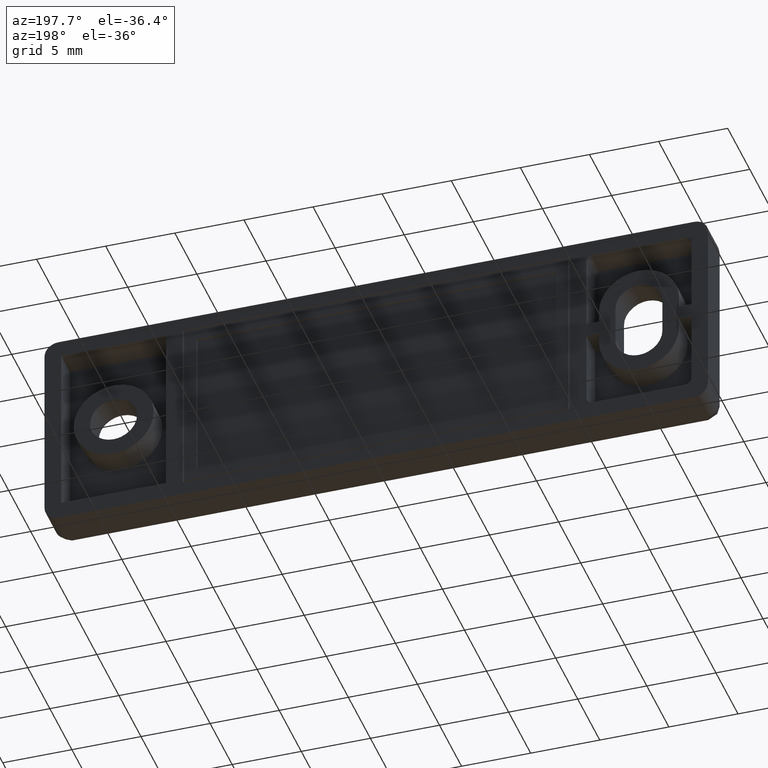
[diagram: clean part render]
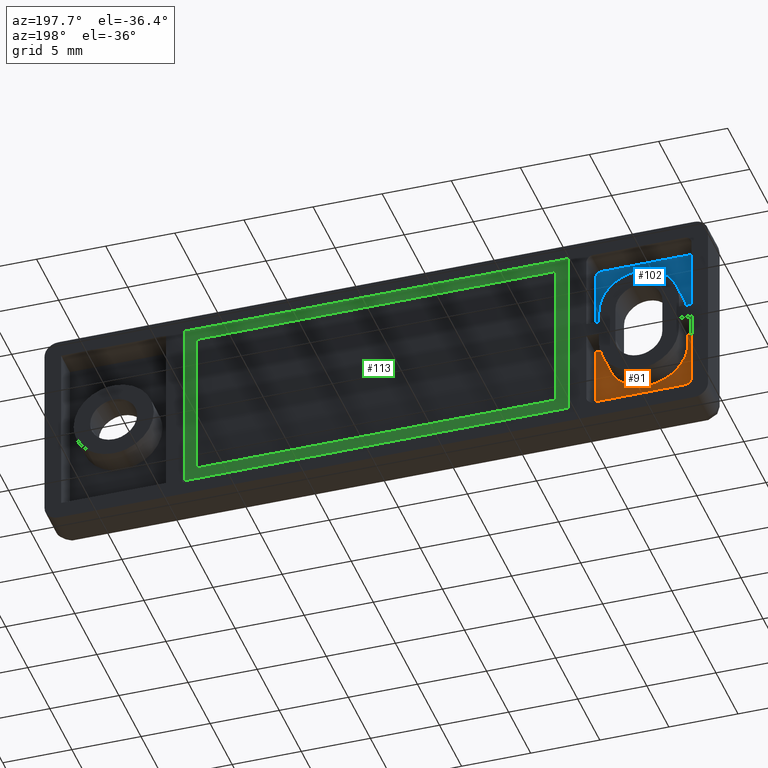
[diagram: same view with three faces highlighted in distinct colors, each labeled with its STEP entity id]
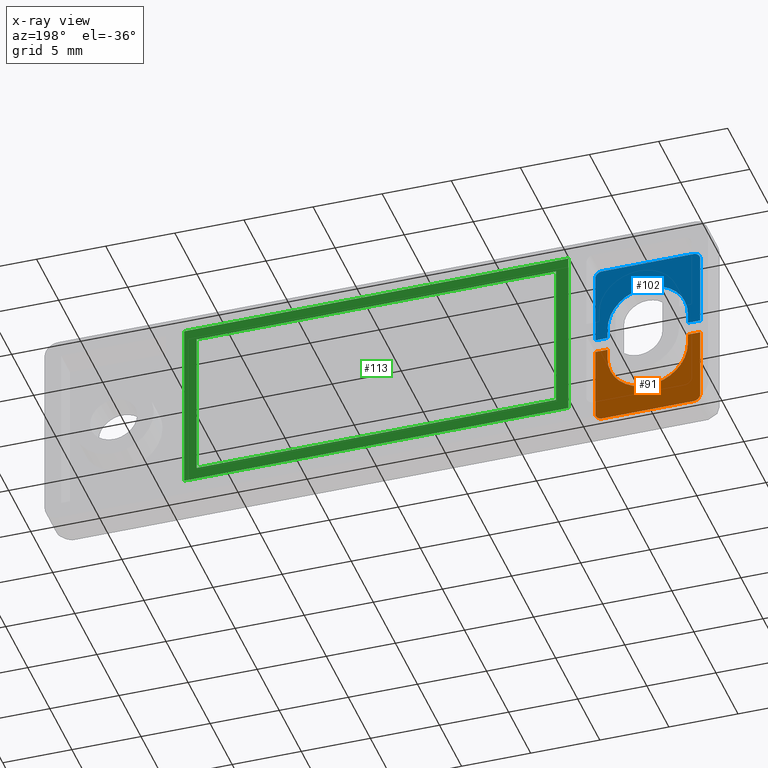
[diagram: x-ray of the same camera — body ghosted, the three highlighted faces saturated]
A machine part, auxiliary view with three faces highlighted in distinct colors.
The next image is the same camera in x-ray (body ghosted, the three faces saturated) — at least one of them is partly hidden behind the body in this view.
Their STEP definitions:

[orange] entity #91 — the highlighted planar face has unit normal (0, 1, 0).
#91=ADVANCED_FACE('',(#313),#312,.T.);
#312=PLANE('',#1016);
#313=FACE_OUTER_BOUND('',#1017,.T.);
#1013=CARTESIAN_POINT('',(-2.35601754630E+01,-2.00000000000E+00,8.00071536270E-02));
#1014=DIRECTION('',(-0.00000000000E+00,1.00000000000E+00,0.00000000000E+00));
#1015=DIRECTION('',(1.00000000000E+00,0.00000000000E+00,0.00000000000E+00));
#1016=AXIS2_PLACEMENT_3D('',#1013,#1014,#1015);
#1017=EDGE_LOOP('',(#1491,#1492,#1493,#1494,#1495,#1496,#1497,#1498,#1499,#1500,#1501));
#1491=ORIENTED_EDGE('',*,*,#1878,.T.);
#1492=ORIENTED_EDGE('',*,*,#1882,.T.);
#1493=ORIENTED_EDGE('',*,*,#1887,.T.);
#1494=ORIENTED_EDGE('',*,*,#1886,.T.);
#1495=ORIENTED_EDGE('',*,*,#1890,.T.);
#1496=ORIENTED_EDGE('',*,*,#1893,.T.);
#1497=ORIENTED_EDGE('',*,*,#1896,.T.);
#1498=ORIENTED_EDGE('',*,*,#1899,.F.);
#1499=ORIENTED_EDGE('',*,*,#1902,.T.);
#1500=ORIENTED_EDGE('',*,*,#1905,.F.);
#1501=ORIENTED_EDGE('',*,*,#1907,.T.);
#1878=EDGE_CURVE('',#2364,#2357,#2365,.T.);
#1882=EDGE_CURVE('',#2357,#2384,#2391,.T.);
#1886=EDGE_CURVE('',#2418,#2411,#2419,.T.);
#1887=EDGE_CURVE('',#2384,#2418,#2425,.T.);
#1890=EDGE_CURVE('',#2411,#2438,#2445,.T.);
#1893=EDGE_CURVE('',#2438,#2458,#2465,.T.);
#1896=EDGE_CURVE('',#2458,#2478,#2485,.T.);
#1899=EDGE_CURVE('',#2498,#2478,#2505,.T.);
#1902=EDGE_CURVE('',#2498,#2518,#2525,.T.);
#1905=EDGE_CURVE('',#2538,#2518,#2545,.T.);
#1907=EDGE_CURVE('',#2538,#2364,#2557,.T.);
#2357=VERTEX_POINT('',#3797);
#2364=VERTEX_POINT('',#3801);
#2365=LINE('',#3802,#3803);
#2384=VERTEX_POINT('',#3812);
#2391=LINE('',#3816,#3817);
#2411=VERTEX_POINT('',#3843);
#2418=VERTEX_POINT('',#3847);
#2419=(BOUNDED_CURVE() B_SPLINE_CURVE(3,(#3848,#3849,#3850,#3851,#3852,#3853,#3854,#3855,#3856,#3857,#3858),.UNSPECIFIED.,.F.,.F.) B_SPLINE_CURVE_WITH_KNOTS((4,1,1,1,1,1,1,1,4),(5.94023610000E-08,8.54120386783E-01,1.56590033256E+00,1.95738562439E+00,2.38442678061E+00,2.95384669290E+00,3.38091405099E+00,3.77239358662E+00,4.55533752793E+00),.UNSPECIFIED.) CURVE() GEOMETRIC_REPRESENTATION_ITEM() RATIONAL_B_SPLINE_CURVE((1.00000000000E+00,1.00000000000E+00,1.00000000000E+00,1.00000000000E+00,1.00000000000E+00,1.00000000000E+00,1.00000000000E+00,1.00000000000E+00,1.00000000000E+00,1.00000000000E+00,1.00000000000E+00)) REPRESENTATION_ITEM('') );
#2425=(BOUNDED_CURVE() B_SPLINE_CURVE(3,(#3859,#3860,#3861,#3862,#3863,#3864,#3865,#3866,#3867,#3868,#3869),.UNSPECIFIED.,.F.,.F.) B_SPLINE_CURVE_WITH_KNOTS((4,1,1,1,1,1,1,1,4),(5.91551710000E-08,9.60888281034E-01,1.45913288657E+00,1.81502232611E+00,2.38442720276E+00,2.74031822230E+00,3.27414715155E+00,3.63003658789E+00,4.55533833275E+00),.UNSPECIFIED.) CURVE() GEOMETRIC_REPRESENTATION_ITEM() RATIONAL_B_SPLINE_CURVE((1.00000000000E+00,1.00000000000E+00,1.00000000000E+00,1.00000000000E+00,1.00000000000E+00,1.00000000000E+00,1.00000000000E+00,1.00000000000E+00,1.00000000000E+00,1.00000000000E+00,1.00000000000E+00)) REPRESENTATION_ITEM('') );
#2438=VERTEX_POINT('',#3874);
#2445=LINE('',#3878,#3879);
#2458=VERTEX_POINT('',#3885);
#2465=LINE('',#3889,#3890);
#2478=VERTEX_POINT('',#3896);
#2485=LINE('',#3900,#3901);
#2498=VERTEX_POINT('',#3912);
#2505=(BOUNDED_CURVE() B_SPLINE_CURVE(3,(#3916,#3917,#3918,#3919,#3920,#3921,#3922,#3923),.UNSPECIFIED.,.F.,.F.) B_SPLINE_CURVE_WITH_KNOTS((4,1,1,1,1,4),(1.23599749000E-07,1.96355604590E-01,3.06813913871E-01,4.54068945242E-01,5.64516977189E-01,7.85417872190E-01),.UNSPECIFIED.) CURVE() GEOMETRIC_REPRESENTATION_ITEM() RATIONAL_B_SPLINE_CURVE((1.00000000000E+00,1.00000000000E+00,1.00000000000E+00,1.00000000000E+00,1.00000000000E+00,1.00000000000E+00,1.00000000000E+00,1.00000000000E+00)) REPRESENTATION_ITEM('') );
#2518=VERTEX_POINT('',#3928);
#2525=LINE('',#3932,#3933);
#2538=VERTEX_POINT('',#3944);
#2545=(BOUNDED_CURVE() B_SPLINE_CURVE(3,(#3948,#3949,#3950,#3951,#3952,#3953,#3954,#3955),.UNSPECIFIED.,.F.,.F.) B_SPLINE_CURVE_WITH_KNOTS((4,1,1,1,1,4),(1.23600712000E-07,2.45448224030E-01,3.80454108132E-01,5.03149611088E-01,6.38154660478E-01,7.85417872190E-01),.UNSPECIFIED.) CURVE() GEOMETRIC_REPRESENTATION_ITEM() RATIONAL_B_SPLINE_CURVE((1.00000000000E+00,1.00000000000E+00,1.00000000000E+00,1.00000000000E+00,1.00000000000E+00,1.00000000000E+00,1.00000000000E+00,1.00000000000E+00)) REPRESENTATION_ITEM('') );
#2557=LINE('',#3959,#3960);
#3797=CARTESIAN_POINT('',(-2.19000000000E+01,-2.00000000000E+00,-5.00000000000E-01));
#3801=CARTESIAN_POINT('',(-2.28000000000E+01,-2.00000000000E+00,-5.00000000000E-01));
#3802=CARTESIAN_POINT('',(-2.28000000000E+01,-2.00000000000E+00,-5.00000000000E-01));
#3803=VECTOR('',#3804,9.00000000000E-01);
#3804=DIRECTION('',(1.00000000000E+00,0.00000000000E+00,0.00000000000E+00));
#3812=CARTESIAN_POINT('',(-2.19000000000E+01,-2.00000000000E+00,-1.30000000000E+00));
#3816=CARTESIAN_POINT('',(-2.19000000000E+01,-2.00000000000E+00,-5.00000000000E-01));
#3817=VECTOR('',#3818,8.00000000000E-01);
#3818=DIRECTION('',(0.00000000000E+00,0.00000000000E+00,-1.00000000000E+00));
#3843=CARTESIAN_POINT('',(-1.61000000000E+01,-2.00000000000E+00,-1.30000000000E+00));
#3847=CARTESIAN_POINT('',(-1.89999992860E+01,-2.00000000000E+00,-4.20000000000E+00));
#3848=CARTESIAN_POINT('',(-1.89999992860E+01,-2.00000000000E+00,-4.20000000000E+00));
#3849=CARTESIAN_POINT('',(-1.87152859027E+01,-2.00000000000E+00,-4.20012022427E+00));
#3850=CARTESIAN_POINT('',(-1.81933793495E+01,-2.00000000000E+00,-4.12250706028E+00));
#3851=CARTESIAN_POINT('',(-1.75924046317E+01,-2.00000000000E+00,-3.85610465468E+00));
#3852=CARTESIAN_POINT('',(-1.71726338653E+01,-2.00000000000E+00,-3.56422816902E+00));
#3853=CARTESIAN_POINT('',(-1.68327368150E+01,-2.00000000000E+00,-3.24851551912E+00));
#3854=CARTESIAN_POINT('',(-1.65440293677E+01,-2.00000000000E+00,-2.86906778448E+00));
#3855=CARTESIAN_POINT('',(-1.63304041438E+01,-2.00000000000E+00,-2.45727037141E+00));
#3856=CARTESIAN_POINT('',(-1.61532121897E+01,-2.00000000000E+00,-1.95241189496E+00));
#3857=CARTESIAN_POINT('',(-1.60999119195E+01,-2.00000000000E+00,-1.56099112129E+00));
#3858=CARTESIAN_POINT('',(-1.61000000000E+01,-2.00000000000E+00,-1.30000000000E+00));
#3859=CARTESIAN_POINT('',(-2.19000000000E+01,-2.00000000000E+00,-1.30000000000E+00));
#3860=CARTESIAN_POINT('',(-2.19002203905E+01,-2.00000000000E+00,-1.62032704566E+00));
#3861=CARTESIAN_POINT('',(-2.18185608183E+01,-2.00000000000E+00,-2.10655638569E+00));
#3862=CARTESIAN_POINT('',(-2.15724215714E+01,-2.00000000000E+00,-2.66168416893E+00));
#3863=CARTESIAN_POINT('',(-2.13180934806E+01,-2.00000000000E+00,-3.06334234342E+00));
#3864=CARTESIAN_POINT('',(-2.10338413717E+01,-2.00000000000E+00,-3.38480601491E+00));
#3865=CARTESIAN_POINT('',(-2.06571539115E+01,-2.00000000000E+00,-3.69393994284E+00));
#3866=CARTESIAN_POINT('',(-2.02982098843E+01,-2.00000000000E+00,-3.90609561216E+00));
#3867=CARTESIAN_POINT('',(-1.97354016414E+01,-2.00000000000E+00,-4.13120527656E+00));
#3868=CARTESIAN_POINT('',(-1.93084622584E+01,-2.00000000000E+00,-4.20019142225E+00));
#3869=CARTESIAN_POINT('',(-1.89999992860E+01,-2.00000000000E+00,-4.20000000000E+00));
#3874=CARTESIAN_POINT('',(-1.61000000000E+01,-2.00000000000E+00,-5.00000000000E-01));
#3878=CARTESIAN_POINT('',(-1.61000000000E+01,-2.00000000000E+00,-1.30000000000E+00));
#3879=VECTOR('',#3880,8.00000000000E-01);
#3880=DIRECTION('',(0.00000000000E+00,0.00000000000E+00,1.00000000000E+00));
#3885=CARTESIAN_POINT('',(-1.52000000000E+01,-2.00000000000E+00,-5.00000000000E-01));
#3889=CARTESIAN_POINT('',(-1.61000000000E+01,-2.00000000000E+00,-5.00000000000E-01));
#3890=VECTOR('',#3891,9.00000000000E-01);
#3891=DIRECTION('',(1.00000000000E+00,0.00000000000E+00,0.00000000000E+00));
#3896=CARTESIAN_POINT('',(-1.52000000000E+01,-2.00000000000E+00,-5.80000000000E+00));
#3900=CARTESIAN_POINT('',(-1.52000000000E+01,-2.00000000000E+00,-5.00000000000E-01));
#3901=VECTOR('',#3902,5.30000000000E+00);
#3902=DIRECTION('',(0.00000000000E+00,0.00000000000E+00,-1.00000000000E+00));
#3912=CARTESIAN_POINT('',(-1.57000000000E+01,-2.00000000000E+00,-6.30000000000E+00));
#3916=CARTESIAN_POINT('',(-1.57000000000E+01,-2.00000000000E+00,-6.30000000000E+00));
#3917=CARTESIAN_POINT('',(-1.56345356158E+01,-2.00000000000E+00,-6.30007153627E+00));
#3918=CARTESIAN_POINT('',(-1.55323324227E+01,-2.00000000000E+00,-6.27961485808E+00));
#3919=CARTESIAN_POINT('',(-1.53989157553E+01,-2.00000000000E+00,-6.20618297631E+00));
#3920=CARTESIAN_POINT('',(-1.53090790605E+01,-2.00000000000E+00,-6.12064658594E+00));
#3921=CARTESIAN_POINT('',(-1.52248570185E+01,-2.00000000000E+00,-5.98399176637E+00));
#3922=CARTESIAN_POINT('',(-1.51998861435E+01,-2.00000000000E+00,-5.87365765608E+00));
#3923=CARTESIAN_POINT('',(-1.52000000000E+01,-2.00000000000E+00,-5.80000000000E+00));
#3928=CARTESIAN_POINT('',(-2.23000000000E+01,-2.00000000000E+00,-6.30000000000E+00));
#3932=CARTESIAN_POINT('',(-1.57000000000E+01,-2.00000000000E+00,-6.30000000000E+00));
#3933=VECTOR('',#3934,6.60000000000E+00);
#3934=DIRECTION('',(-1.00000000000E+00,0.00000000000E+00,0.00000000000E+00));
#3944=CARTESIAN_POINT('',(-2.28000000000E+01,-2.00000000000E+00,-5.80000000000E+00));
#3948=CARTESIAN_POINT('',(-2.28000000000E+01,-2.00000000000E+00,-5.80000000000E+00));
#3949=CARTESIAN_POINT('',(-2.28001491613E+01,-2.00000000000E+00,-5.88184692325E+00));
#3950=CARTESIAN_POINT('',(-2.27681805156E+01,-2.00000000000E+00,-6.00849718998E+00));
#3951=CARTESIAN_POINT('',(-2.26689487196E+01,-2.00000000000E+00,-6.14563473173E+00));
#3952=CARTESIAN_POINT('',(-2.25670138624E+01,-2.00000000000E+00,-6.22931403444E+00));
#3953=CARTESIAN_POINT('',(-2.24431618045E+01,-2.00000000000E+00,-6.28603067554E+00));
#3954=CARTESIAN_POINT('',(-2.23490897722E+01,-2.00000000000E+00,-6.30002242537E+00));
#3955=CARTESIAN_POINT('',(-2.23000000000E+01,-2.00000000000E+00,-6.30000000000E+00));
#3959=CARTESIAN_POINT('',(-2.28000000000E+01,-2.00000000000E+00,-5.80000000000E+00));
#3960=VECTOR('',#3961,5.30000000000E+00);
#3961=DIRECTION('',(0.00000000000E+00,0.00000000000E+00,1.00000000000E+00));

[blue] entity #102 — the highlighted planar face has unit normal (0, 1, 0).
#102=ADVANCED_FACE('',(#423),#422,.T.);
#422=PLANE('',#1071);
#423=FACE_OUTER_BOUND('',#1072,.T.);
#1068=CARTESIAN_POINT('',(-2.35600089589E+01,-2.00000000000E+00,6.88016390426E+00));
#1069=DIRECTION('',(-0.00000000000E+00,1.00000000000E+00,0.00000000000E+00));
#1070=DIRECTION('',(1.00000000000E+00,0.00000000000E+00,0.00000000000E+00));
#1071=AXIS2_PLACEMENT_3D('',#1068,#1069,#1070);
#1072=EDGE_LOOP('',(#1544,#1545,#1546,#1547,#1548,#1549,#1550,#1551,#1552,#1553,#1554));
#1544=ORIENTED_EDGE('',*,*,#1912,.T.);
#1545=ORIENTED_EDGE('',*,*,#1911,.T.);
#1546=ORIENTED_EDGE('',*,*,#1916,.F.);
#1547=ORIENTED_EDGE('',*,*,#1919,.F.);
#1548=ORIENTED_EDGE('',*,*,#1922,.F.);
#1549=ORIENTED_EDGE('',*,*,#1925,.F.);
#1550=ORIENTED_EDGE('',*,*,#1928,.F.);
#1551=ORIENTED_EDGE('',*,*,#1931,.F.);
#1552=ORIENTED_EDGE('',*,*,#1934,.F.);
#1553=ORIENTED_EDGE('',*,*,#1937,.F.);
#1554=ORIENTED_EDGE('',*,*,#1939,.F.);
#1911=EDGE_CURVE('',#2585,#2578,#2586,.T.);
#1912=EDGE_CURVE('',#2592,#2585,#2593,.T.);
#1916=EDGE_CURVE('',#2612,#2578,#2619,.T.);
#1919=EDGE_CURVE('',#2632,#2612,#2639,.T.);
#1922=EDGE_CURVE('',#2652,#2632,#2659,.T.);
#1925=EDGE_CURVE('',#2672,#2652,#2679,.T.);
#1928=EDGE_CURVE('',#2692,#2672,#2699,.T.);
#1931=EDGE_CURVE('',#2712,#2692,#2719,.T.);
#1934=EDGE_CURVE('',#2732,#2712,#2739,.T.);
#1937=EDGE_CURVE('',#2752,#2732,#2759,.T.);
#1939=EDGE_CURVE('',#2592,#2752,#2771,.T.);
#2578=VERTEX_POINT('',#3986);
#2585=VERTEX_POINT('',#3990);
#2586=(BOUNDED_CURVE() B_SPLINE_CURVE(3,(#3991,#3992,#3993,#3994,#3995,#3996,#3997,#3998,#3999,#4000),.UNSPECIFIED.,.F.,.F.) B_SPLINE_CURVE_WITH_KNOTS((4,1,1,1,1,1,1,4),(5.93604230000E-08,8.54120411510E-01,1.35236640765E+00,2.02855385919E+00,2.70471864973E+00,3.27414666783E+00,3.77239369602E+00,4.55533765998E+00),.UNSPECIFIED.) CURVE() GEOMETRIC_REPRESENTATION_ITEM() RATIONAL_B_SPLINE_CURVE((1.00000000000E+00,1.00000000000E+00,1.00000000000E+00,1.00000000000E+00,1.00000000000E+00,1.00000000000E+00,1.00000000000E+00,1.00000000000E+00,1.00000000000E+00,1.00000000000E+00)) REPRESENTATION_ITEM('') );
#2592=VERTEX_POINT('',#4001);
#2593=(BOUNDED_CURVE() B_SPLINE_CURVE(3,(#4002,#4003,#4004,#4005,#4006,#4007,#4008,#4009,#4010,#4011,#4012),.UNSPECIFIED.,.F.,.F.) B_SPLINE_CURVE_WITH_KNOTS((4,1,1,1,1,1,1,1,4),(5.91998270000E-08,9.60888253216E-01,1.56590056350E+00,1.92178439983E+00,2.38442713349E+00,2.95384712954E+00,3.30973754065E+00,3.77239414398E+00,4.55533820070E+00),.UNSPECIFIED.) CURVE() GEOMETRIC_REPRESENTATION_ITEM() RATIONAL_B_SPLINE_CURVE((1.00000000000E+00,1.00000000000E+00,1.00000000000E+00,1.00000000000E+00,1.00000000000E+00,1.00000000000E+00,1.00000000000E+00,1.00000000000E+00,1.00000000000E+00,1.00000000000E+00,1.00000000000E+00)) REPRESENTATION_ITEM('') );
#2612=VERTEX_POINT('',#4020);
#2619=LINE('',#4024,#4025);
#2632=VERTEX_POINT('',#4031);
#2639=LINE('',#4035,#4036);
#2652=VERTEX_POINT('',#4042);
#2659=LINE('',#4046,#4047);
#2672=VERTEX_POINT('',#4058);
#2679=(BOUNDED_CURVE() B_SPLINE_CURVE(3,(#4062,#4063,#4064,#4065,#4066,#4067,#4068,#4069),.UNSPECIFIED.,.F.,.F.) B_SPLINE_CURVE_WITH_KNOTS((4,1,1,1,1,4),(1.23597446000E-07,2.45448224028E-01,3.80454108130E-01,5.03149611087E-01,6.62697262264E-01,7.85417872190E-01),.UNSPECIFIED.) CURVE() GEOMETRIC_REPRESENTATION_ITEM() RATIONAL_B_SPLINE_CURVE((1.00000000000E+00,1.00000000000E+00,1.00000000000E+00,1.00000000000E+00,1.00000000000E+00,1.00000000000E+00,1.00000000000E+00,1.00000000000E+00)) REPRESENTATION_ITEM('') );
#2692=VERTEX_POINT('',#4074);
#2699=LINE('',#4078,#4079);
#2712=VERTEX_POINT('',#4090);
#2719=(BOUNDED_CURVE() B_SPLINE_CURVE(3,(#4094,#4095,#4096,#4097,#4098,#4099,#4100,#4101),.UNSPECIFIED.,.F.,.F.) B_SPLINE_CURVE_WITH_KNOTS((4,1,1,1,1,4),(1.23599316000E-07,1.59535260064E-01,3.43635450389E-01,5.03149611087E-01,6.38154660478E-01,7.85417872190E-01),.UNSPECIFIED.) CURVE() GEOMETRIC_REPRESENTATION_ITEM() RATIONAL_B_SPLINE_CURVE((1.00000000000E+00,1.00000000000E+00,1.00000000000E+00,1.00000000000E+00,1.00000000000E+00,1.00000000000E+00,1.00000000000E+00,1.00000000000E+00)) REPRESENTATION_ITEM('') );
#2732=VERTEX_POINT('',#4106);
#2739=LINE('',#4110,#4111);
#2752=VERTEX_POINT('',#4117);
#2759=LINE('',#4121,#4122);
#2771=LINE('',#4127,#4128);
#3986=CARTESIAN_POINT('',(-2.19000000000E+01,-2.00000000000E+00,1.30000000000E+00));
#3990=CARTESIAN_POINT('',(-1.90000004797E+01,-2.00000000000E+00,4.20000000000E+00));
#3991=CARTESIAN_POINT('',(-1.90000004797E+01,-2.00000000000E+00,4.20000000000E+00));
#3992=CARTESIAN_POINT('',(-1.92847213555E+01,-2.00000000000E+00,4.20012454495E+00));
#3993=CARTESIAN_POINT('',(-1.97354276711E+01,-2.00000000000E+00,4.13305957033E+00));
#3994=CARTESIAN_POINT('',(-2.03655914098E+01,-2.00000000000E+00,3.88103279213E+00));
#3995=CARTESIAN_POINT('',(-2.08841159543E+01,-2.00000000000E+00,3.53919975369E+00));
#3996=CARTESIAN_POINT('',(-2.13259534149E+01,-2.00000000000E+00,3.06935696882E+00));
#3997=CARTESIAN_POINT('',(-2.16262030676E+01,-2.00000000000E+00,2.56835049052E+00));
#3998=CARTESIAN_POINT('',(-2.18419332315E+01,-2.00000000000E+00,1.98799658354E+00));
#3999=CARTESIAN_POINT('',(-2.19000979714E+01,-2.00000000000E+00,1.56099148855E+00));
#4000=CARTESIAN_POINT('',(-2.19000000000E+01,-2.00000000000E+00,1.30000000000E+00));
#4001=CARTESIAN_POINT('',(-1.61000000000E+01,-2.00000000000E+00,1.30000000000E+00));
#4002=CARTESIAN_POINT('',(-1.61000000000E+01,-2.00000000000E+00,1.30000000000E+00));
#4003=CARTESIAN_POINT('',(-1.60998032735E+01,-2.00000000000E+00,1.62032096295E+00));
#4004=CARTESIAN_POINT('',(-1.61873841901E+01,-2.00000000000E+00,2.14214761833E+00));
#4005=CARTESIAN_POINT('',(-1.64592577549E+01,-2.00000000000E+00,2.72605172834E+00));
#4006=CARTESIAN_POINT('',(-1.67282223289E+01,-2.00000000000E+00,3.11805512514E+00));
#4007=CARTESIAN_POINT('',(-1.70419900848E+01,-2.00000000000E+00,3.46004731776E+00));
#4008=CARTESIAN_POINT('',(-1.74119631408E+01,-2.00000000000E+00,3.74152967400E+00));
#4009=CARTESIAN_POINT('',(-1.78207645759E+01,-2.00000000000E+00,3.96001988632E+00));
#4010=CARTESIAN_POINT('',(-1.83238623865E+01,-2.00000000000E+00,4.14356154779E+00));
#4011=CARTESIAN_POINT('',(-1.87390107037E+01,-2.00000000000E+00,4.20008696002E+00));
#4012=CARTESIAN_POINT('',(-1.90000004797E+01,-2.00000000000E+00,4.20000000000E+00));
#4020=CARTESIAN_POINT('',(-2.19000000000E+01,-2.00000000000E+00,5.00000000000E-01));
#4024=CARTESIAN_POINT('',(-2.19000000000E+01,-2.00000000000E+00,5.00000000000E-01));
#4025=VECTOR('',#4026,8.00000000000E-01);
#4026=DIRECTION('',(0.00000000000E+00,0.00000000000E+00,1.00000000000E+00));
#4031=CARTESIAN_POINT('',(-2.28000000000E+01,-2.00000000000E+00,5.00000000000E-01));
#4035=CARTESIAN_POINT('',(-2.28000000000E+01,-2.00000000000E+00,5.00000000000E-01));
#4036=VECTOR('',#4037,9.00000000000E-01);
#4037=DIRECTION('',(1.00000000000E+00,0.00000000000E+00,0.00000000000E+00));
#4042=CARTESIAN_POINT('',(-2.28000000000E+01,-2.00000000000E+00,5.80000000000E+00));
#4046=CARTESIAN_POINT('',(-2.28000000000E+01,-2.00000000000E+00,5.80000000000E+00));
#4047=VECTOR('',#4048,5.30000000000E+00);
#4048=DIRECTION('',(0.00000000000E+00,0.00000000000E+00,-1.00000000000E+00));
#4058=CARTESIAN_POINT('',(-2.23000000000E+01,-2.00000000000E+00,6.30000000000E+00));
#4062=CARTESIAN_POINT('',(-2.23000000000E+01,-2.00000000000E+00,6.30000000000E+00));
#4063=CARTESIAN_POINT('',(-2.23818470206E+01,-2.00000000000E+00,6.30014900387E+00));
#4064=CARTESIAN_POINT('',(-2.25084972155E+01,-2.00000000000E+00,6.26818086436E+00));
#4065=CARTESIAN_POINT('',(-2.26456335608E+01,-2.00000000000E+00,6.16894806190E+00));
#4066=CARTESIAN_POINT('',(-2.27345552556E+01,-2.00000000000E+00,6.06064527355E+00));
#4067=CARTESIAN_POINT('',(-2.27884080505E+01,-2.00000000000E+00,5.93499718905E+00));
#4068=CARTESIAN_POINT('',(-2.28000064721E+01,-2.00000000000E+00,5.84090497442E+00));
#4069=CARTESIAN_POINT('',(-2.28000000000E+01,-2.00000000000E+00,5.80000000000E+00));
#4074=CARTESIAN_POINT('',(-1.57000000000E+01,-2.00000000000E+00,6.30000000000E+00));
#4078=CARTESIAN_POINT('',(-1.57000000000E+01,-2.00000000000E+00,6.30000000000E+00));
#4079=VECTOR('',#4080,6.60000000000E+00);
#4080=DIRECTION('',(-1.00000000000E+00,0.00000000000E+00,0.00000000000E+00));
#4090=CARTESIAN_POINT('',(-1.52000000000E+01,-2.00000000000E+00,5.80000000000E+00));
#4094=CARTESIAN_POINT('',(-1.52000000000E+01,-2.00000000000E+00,5.80000000000E+00));
#4095=CARTESIAN_POINT('',(-1.51999816044E+01,-2.00000000000E+00,5.85317679373E+00));
#4096=CARTESIAN_POINT('',(-1.52184156109E+01,-2.00000000000E+00,5.96771652706E+00));
#4097=CARTESIAN_POINT('',(-1.53006458593E+01,-2.00000000000E+00,6.11715628985E+00));
#4098=CARTESIAN_POINT('',(-1.54217235991E+01,-2.00000000000E+00,6.22416283475E+00));
#4099=CARTESIAN_POINT('',(-1.55568372678E+01,-2.00000000000E+00,6.28603058783E+00));
#4100=CARTESIAN_POINT('',(-1.56509107720E+01,-2.00000000000E+00,6.30002232756E+00));
#4101=CARTESIAN_POINT('',(-1.57000000000E+01,-2.00000000000E+00,6.30000000000E+00));
#4106=CARTESIAN_POINT('',(-1.52000000000E+01,-2.00000000000E+00,5.00000000000E-01));
#4110=CARTESIAN_POINT('',(-1.52000000000E+01,-2.00000000000E+00,5.00000000000E-01));
#4111=VECTOR('',#4112,5.30000000000E+00);
#4112=DIRECTION('',(0.00000000000E+00,0.00000000000E+00,1.00000000000E+00));
#4117=CARTESIAN_POINT('',(-1.61000000000E+01,-2.00000000000E+00,5.00000000000E-01));
#4121=CARTESIAN_POINT('',(-1.61000000000E+01,-2.00000000000E+00,5.00000000000E-01));
#4122=VECTOR('',#4123,9.00000000000E-01);
#4123=DIRECTION('',(1.00000000000E+00,0.00000000000E+00,0.00000000000E+00));
#4127=CARTESIAN_POINT('',(-1.61000000000E+01,-2.00000000000E+00,1.30000000000E+00));
#4128=VECTOR('',#4129,8.00000000000E-01);
#4129=DIRECTION('',(0.00000000000E+00,0.00000000000E+00,-1.00000000000E+00));

[green] entity #113 — the highlighted planar face has unit normal (0, 1, 0).
#113=ADVANCED_FACE('',(#536,#537),#535,.T.);
#535=PLANE('',#1129);
#536=FACE_OUTER_BOUND('',#1130,.T.);
#537=FACE_BOUND('',#1131,.T.);
#1126=CARTESIAN_POINT('',(-1.66800000000E+01,0.00000000000E+00,7.68000000000E+00));
#1127=DIRECTION('',(-0.00000000000E+00,1.00000000000E+00,0.00000000000E+00));
#1128=DIRECTION('',(1.00000000000E+00,0.00000000000E+00,0.00000000000E+00));
#1129=AXIS2_PLACEMENT_3D('',#1126,#1127,#1128);
#1130=EDGE_LOOP('',(#1613,#1614,#1615,#1616));
#1131=EDGE_LOOP('',(#1617,#1618,#1619,#1620));
#1613=ORIENTED_EDGE('',*,*,#1981,.F.);
#1614=ORIENTED_EDGE('',*,*,#1974,.F.);
#1615=ORIENTED_EDGE('',*,*,#1977,.F.);
#1616=ORIENTED_EDGE('',*,*,#1979,.F.);
#1617=ORIENTED_EDGE('',*,*,#1982,.T.);
#1618=ORIENTED_EDGE('',*,*,#1983,.T.);
#1619=ORIENTED_EDGE('',*,*,#1984,.T.);
#1620=ORIENTED_EDGE('',*,*,#1985,.T.);
#1974=EDGE_CURVE('',#3011,#3012,#3013,.T.);
#1977=EDGE_CURVE('',#3031,#3011,#3032,.T.);
#1979=EDGE_CURVE('',#3044,#3031,#3045,.T.);
#1981=EDGE_CURVE('',#3012,#3044,#3057,.T.);
#1982=EDGE_CURVE('',#3063,#3064,#3065,.T.);
#1983=EDGE_CURVE('',#3064,#3071,#3072,.T.);
#1984=EDGE_CURVE('',#3071,#3078,#3079,.T.);
#1985=EDGE_CURVE('',#3078,#3063,#3085,.T.);
#3011=VERTEX_POINT('',#4327);
#3012=VERTEX_POINT('',#4328);
#3013=LINE('',#4329,#4330);
#3031=VERTEX_POINT('',#4338);
#3032=LINE('',#4339,#4340);
#3044=VERTEX_POINT('',#4345);
#3045=LINE('',#4346,#4347);
#3057=LINE('',#4352,#4353);
#3063=VERTEX_POINT('',#4355);
#3064=VERTEX_POINT('',#4356);
#3065=LINE('',#4357,#4358);
#3071=VERTEX_POINT('',#4360);
#3072=LINE('',#4361,#4362);
#3078=VERTEX_POINT('',#4364);
#3079=LINE('',#4365,#4366);
#3085=LINE('',#4368,#4369);
#4327=CARTESIAN_POINT('',(1.39000000000E+01,0.00000000000E+00,-6.40000000000E+00));
#4328=CARTESIAN_POINT('',(1.39000000000E+01,0.00000000000E+00,6.40000000000E+00));
#4329=CARTESIAN_POINT('',(1.39000000000E+01,0.00000000000E+00,-6.40000000000E+00));
#4330=VECTOR('',#4331,1.28000000000E+01);
#4331=DIRECTION('',(0.00000000000E+00,0.00000000000E+00,1.00000000000E+00));
#4338=CARTESIAN_POINT('',(-1.39000000000E+01,0.00000000000E+00,-6.40000000000E+00));
#4339=CARTESIAN_POINT('',(-1.39000000000E+01,0.00000000000E+00,-6.40000000000E+00));
#4340=VECTOR('',#4341,2.78000000000E+01);
#4341=DIRECTION('',(1.00000000000E+00,0.00000000000E+00,0.00000000000E+00));
#4345=CARTESIAN_POINT('',(-1.39000000000E+01,0.00000000000E+00,6.40000000000E+00));
#4346=CARTESIAN_POINT('',(-1.39000000000E+01,0.00000000000E+00,6.40000000000E+00));
#4347=VECTOR('',#4348,1.28000000000E+01);
#4348=DIRECTION('',(0.00000000000E+00,0.00000000000E+00,-1.00000000000E+00));
#4352=CARTESIAN_POINT('',(1.39000000000E+01,0.00000000000E+00,6.40000000000E+00));
#4353=VECTOR('',#4354,2.78000000000E+01);
#4354=DIRECTION('',(-1.00000000000E+00,0.00000000000E+00,0.00000000000E+00));
#4355=CARTESIAN_POINT('',(1.30000000000E+01,0.00000000000E+00,-5.50000000000E+00));
#4356=CARTESIAN_POINT('',(1.30000000000E+01,0.00000000000E+00,5.50000000000E+00));
#4357=CARTESIAN_POINT('',(1.30000000000E+01,0.00000000000E+00,-5.50000000000E+00));
#4358=VECTOR('',#4359,1.10000000000E+01);
#4359=DIRECTION('',(0.00000000000E+00,0.00000000000E+00,1.00000000000E+00));
#4360=CARTESIAN_POINT('',(-1.30000000000E+01,0.00000000000E+00,5.50000000000E+00));
#4361=CARTESIAN_POINT('',(1.30000000000E+01,0.00000000000E+00,5.50000000000E+00));
#4362=VECTOR('',#4363,2.60000000000E+01);
#4363=DIRECTION('',(-1.00000000000E+00,0.00000000000E+00,0.00000000000E+00));
#4364=CARTESIAN_POINT('',(-1.30000000000E+01,0.00000000000E+00,-5.50000000000E+00));
#4365=CARTESIAN_POINT('',(-1.30000000000E+01,0.00000000000E+00,5.50000000000E+00));
#4366=VECTOR('',#4367,1.10000000000E+01);
#4367=DIRECTION('',(0.00000000000E+00,0.00000000000E+00,-1.00000000000E+00));
#4368=CARTESIAN_POINT('',(-1.30000000000E+01,0.00000000000E+00,-5.50000000000E+00));
#4369=VECTOR('',#4370,2.60000000000E+01);
#4370=DIRECTION('',(1.00000000000E+00,0.00000000000E+00,0.00000000000E+00));